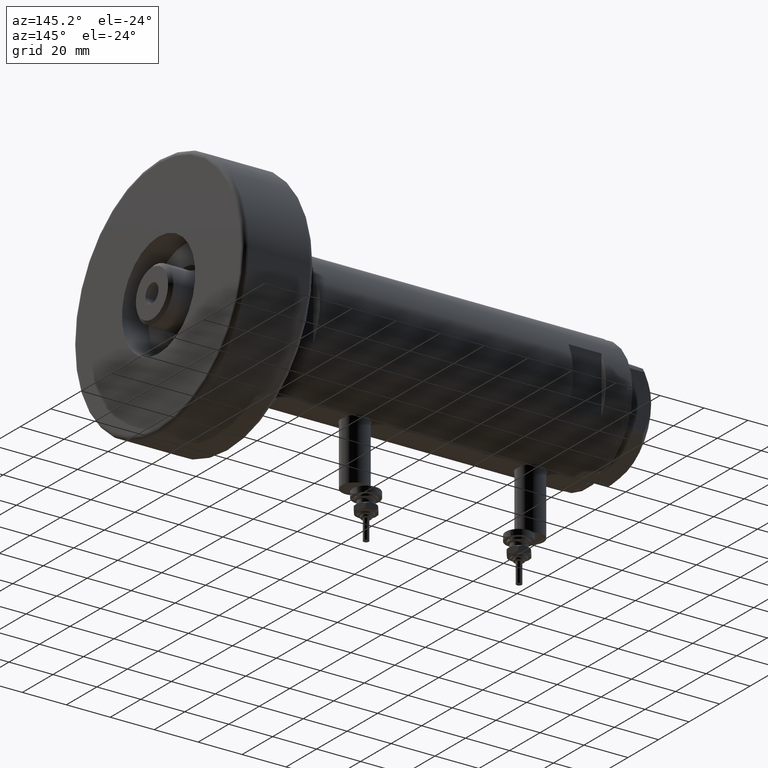
[diagram: clean part render]
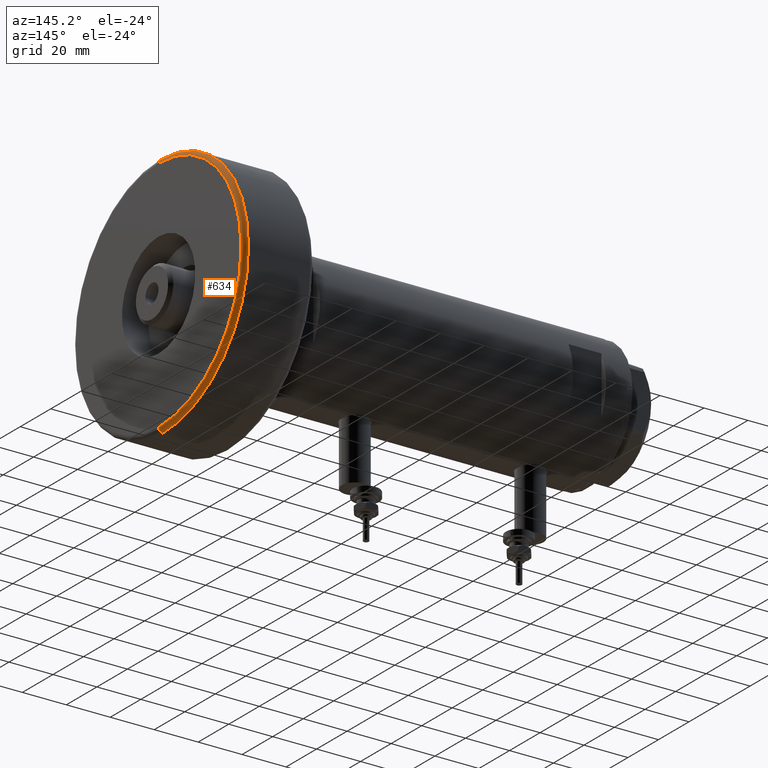
[diagram: same view with one face highlighted and labeled with its STEP entity id]
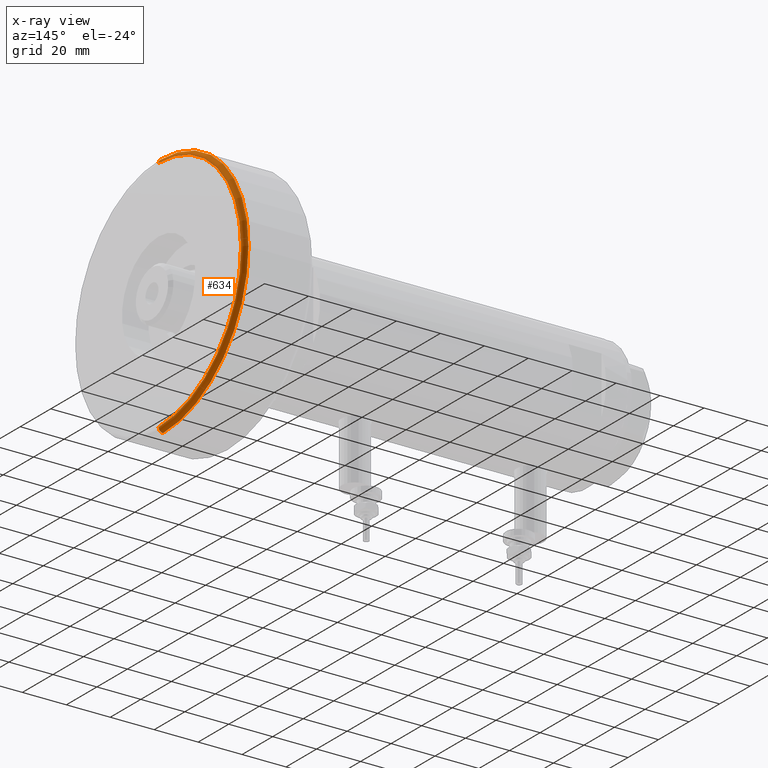
[diagram: x-ray of the same camera — body ghosted, the highlighted face saturated]
A machine part, auxiliary view. The second image highlights one B-rep face of the part: STEP entity #634.
The next image is the same camera in x-ray: the body ghosted, the highlighted face saturated — about 0% of this face is hidden behind the body in this view.
In plain terms, the highlighted toroidal blend (fillet) surface has major radius 54 mm and minor (blend) radius 2 mm.
Its self-contained STEP definition (entity closure, byte-faithful):
#220 = DIRECTION ( 'NONE',  ( 0.000000000000000000, 0.000000000000000000, 1.000000000000000000 ) ) ;
#259 = AXIS2_PLACEMENT_3D ( 'NONE', #1041, #3461, #3902 ) ;
#509 = CARTESIAN_POINT ( 'NONE',  ( -54.00000000000000000, 6.613092715395707467E-15, 30.00000000000000000 ) ) ;
#522 = DIRECTION ( 'NONE',  ( 0.000000000000000000, -1.000000000000000000, 0.000000000000000000 ) ) ;
#569 = DIRECTION ( 'NONE',  ( 1.000000000000000000, 0.000000000000000000, 0.000000000000000000 ) ) ;
#634 = ADVANCED_FACE ( 'NONE', ( #3654 ), #3417, .T. ) ;
#700 = CARTESIAN_POINT ( 'NONE',  ( 0.000000000000000000, 0.000000000000000000, 32.00000000000000000 ) ) ;
#812 = CARTESIAN_POINT ( 'NONE',  ( 54.00000000000000000, 0.000000000000000000, 32.00000000000000000 ) ) ;
#896 = VERTEX_POINT ( 'NONE', #812 ) ;
#909 = AXIS2_PLACEMENT_3D ( 'NONE', #700, #220, #4520 ) ;
#997 = CIRCLE ( 'NONE', #3130, 56.00000000000000000 ) ;
#1041 = CARTESIAN_POINT ( 'NONE',  ( 0.000000000000000000, 0.000000000000000000, 30.00000000000000000 ) ) ;
#1452 = DIRECTION ( 'NONE',  ( -0.000000000000000000, -0.000000000000000000, -1.000000000000000000 ) ) ;
#1510 = ORIENTED_EDGE ( 'NONE', *, *, #3204, .F. ) ;
#1905 = CIRCLE ( 'NONE', #909, 54.00000000000000000 ) ;
#1920 = DIRECTION ( 'NONE',  ( 1.224646799147353207E-16, 1.000000000000000000, -0.000000000000000000 ) ) ;
#2440 = DIRECTION ( 'NONE',  ( -1.000000000000000000, 1.224646799147353454E-16, 0.000000000000000000 ) ) ;
#2455 = CARTESIAN_POINT ( 'NONE',  ( -56.00000000000000000, 0.000000000000000000, 30.00000000000000000 ) ) ;
#2482 = CARTESIAN_POINT ( 'NONE',  ( -54.00000000000000000, 6.735557395310443404E-15, 32.00000000000000000 ) ) ;
#3130 = AXIS2_PLACEMENT_3D ( 'NONE', #3373, #1452, #569 ) ;
#3190 = VERTEX_POINT ( 'NONE', #2482 ) ;
#3204 = EDGE_CURVE ( 'NONE', #4510, #896, #5260, .T. ) ;
#3321 = AXIS2_PLACEMENT_3D ( 'NONE', #4885, #522, #4944 ) ;
#3373 = CARTESIAN_POINT ( 'NONE',  ( 0.000000000000000000, 0.000000000000000000, 30.00000000000000000 ) ) ;
#3417 = TOROIDAL_SURFACE ( 'NONE', #259, 54.00000000000000000, 2.000000000000000000 ) ;
#3461 = DIRECTION ( 'NONE',  ( 0.000000000000000000, 0.000000000000000000, 1.000000000000000000 ) ) ;
#3654 = FACE_OUTER_BOUND ( 'NONE', #5743, .T. ) ;
#3715 = ORIENTED_EDGE ( 'NONE', *, *, #5472, .F. ) ;
#3902 = DIRECTION ( 'NONE',  ( 1.000000000000000000, 0.000000000000000000, 0.000000000000000000 ) ) ;
#4201 = EDGE_CURVE ( 'NONE', #5937, #4510, #997, .T. ) ;
#4239 = EDGE_CURVE ( 'NONE', #5937, #3190, #5683, .T. ) ;
#4375 = ORIENTED_EDGE ( 'NONE', *, *, #4239, .T. ) ;
#4510 = VERTEX_POINT ( 'NONE', #5891 ) ;
#4520 = DIRECTION ( 'NONE',  ( 1.000000000000000000, 0.000000000000000000, 0.000000000000000000 ) ) ;
#4885 = CARTESIAN_POINT ( 'NONE',  ( 54.00000000000000000, 0.000000000000000000, 30.00000000000000000 ) ) ;
#4944 = DIRECTION ( 'NONE',  ( 0.000000000000000000, 0.000000000000000000, -1.000000000000000000 ) ) ;
#5162 = AXIS2_PLACEMENT_3D ( 'NONE', #509, #1920, #2440 ) ;
#5260 = CIRCLE ( 'NONE', #3321, 2.000000000000001776 ) ;
#5472 = EDGE_CURVE ( 'NONE', #896, #3190, #1905, .T. ) ;
#5683 = CIRCLE ( 'NONE', #5162, 2.000000000000001776 ) ;
#5743 = EDGE_LOOP ( 'NONE', ( #6133, #4375, #3715, #1510 ) ) ;
#5891 = CARTESIAN_POINT ( 'NONE',  ( 56.00000000000000000, 6.858022075225178552E-15, 30.00000000000000000 ) ) ;
#5937 = VERTEX_POINT ( 'NONE', #2455 ) ;
#6133 = ORIENTED_EDGE ( 'NONE', *, *, #4201, .F. ) ;